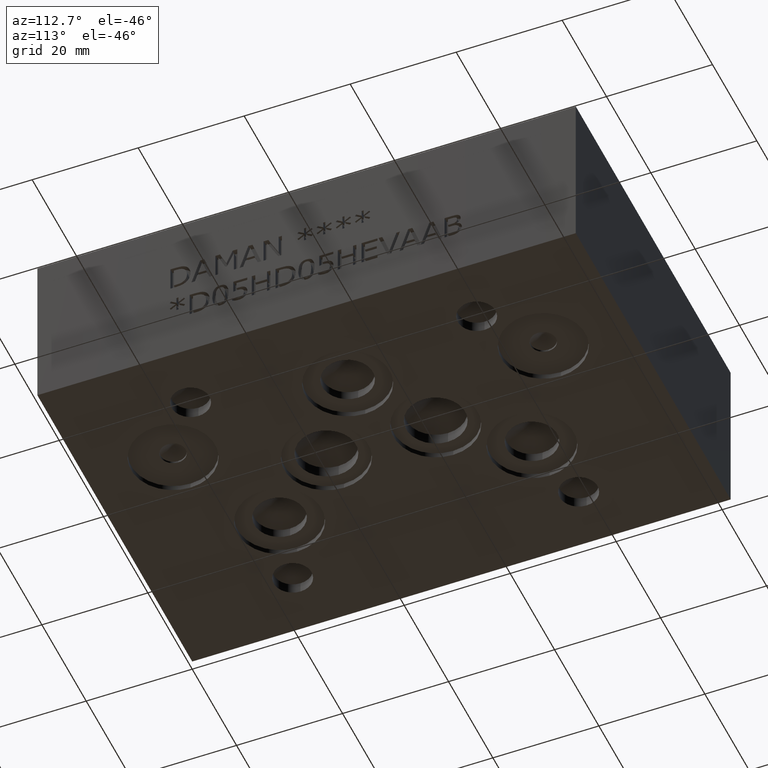
[diagram: clean part render]
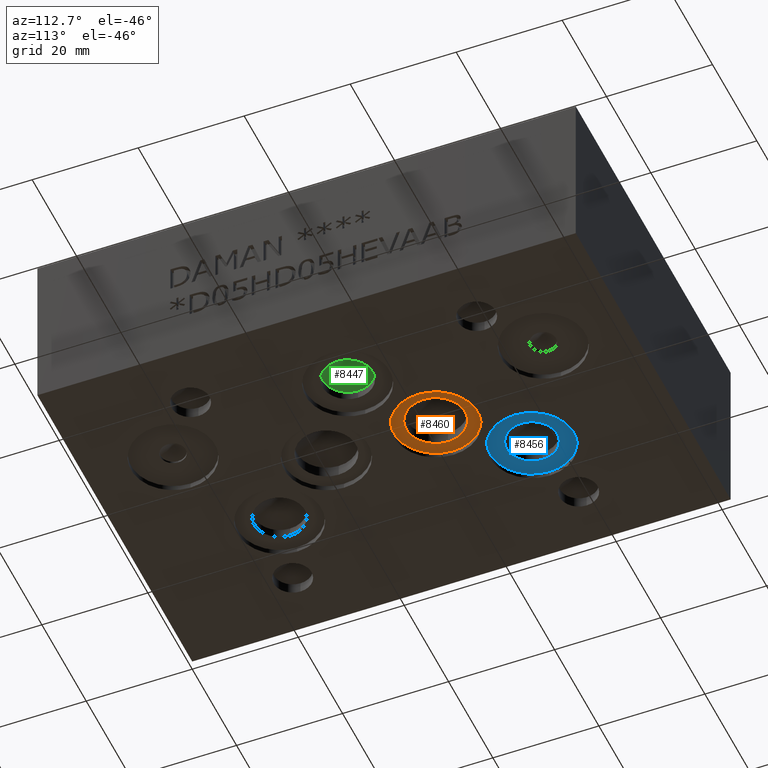
[diagram: same view with three faces highlighted in distinct colors, each labeled with its STEP entity id]
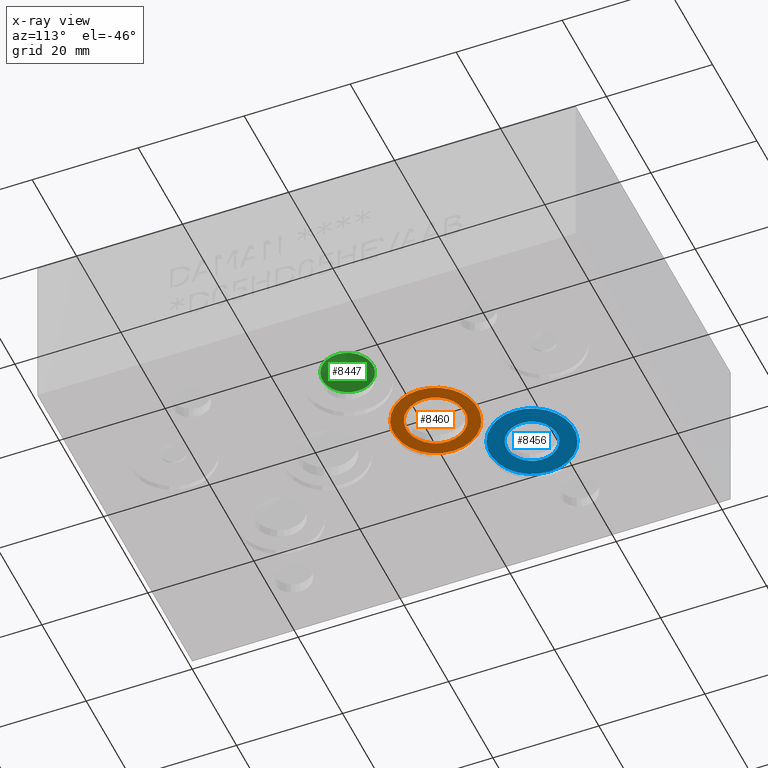
[diagram: x-ray of the same camera — body ghosted, the three highlighted faces saturated]
A machine part, auxiliary view with three faces highlighted in distinct colors.
The next image is the same camera in x-ray (body ghosted, the three faces saturated) — at least one of them is partly hidden behind the body in this view.
Their STEP definitions:

[orange] entity #8460 — the highlighted planar face has unit normal (0, 0, -1).
#48=CIRCLE('',#8798,5.5626);
#82=CIRCLE('',#8851,7.9375);
#83=CIRCLE('',#8852,7.9375);
#211=FACE_BOUND('',#1349,.T.);
#885=FACE_OUTER_BOUND('',#1348,.T.);
#1348=EDGE_LOOP('',(#7198,#7199));
#1349=EDGE_LOOP('',(#7200));
#3831=VERTEX_POINT('',#13911);
#3870=VERTEX_POINT('',#14018);
#3871=VERTEX_POINT('',#14020);
#4958=EDGE_CURVE('',#3831,#3831,#48,.T.);
#5008=EDGE_CURVE('',#3871,#3870,#82,.T.);
#5009=EDGE_CURVE('',#3870,#3871,#83,.T.);
#7198=ORIENTED_EDGE('',*,*,#5008,.T.);
#7199=ORIENTED_EDGE('',*,*,#5009,.T.);
#7200=ORIENTED_EDGE('',*,*,#4958,.T.);
#7714=PLANE('',#8853);
#8460=ADVANCED_FACE('',(#885,#211),#7714,.T.);
#8798=AXIS2_PLACEMENT_3D('',#13912,#10348,#10349);
#8851=AXIS2_PLACEMENT_3D('',#14021,#10470,#10471);
#8852=AXIS2_PLACEMENT_3D('',#14022,#10472,#10473);
#8853=AXIS2_PLACEMENT_3D('',#14023,#10474,#10475);
#10348=DIRECTION('center_axis',(0.,0.,1.));
#10349=DIRECTION('ref_axis',(1.,0.,0.));
#10470=DIRECTION('center_axis',(0.,0.,-1.));
#10471=DIRECTION('ref_axis',(1.,0.,0.));
#10472=DIRECTION('center_axis',(0.,0.,-1.));
#10473=DIRECTION('ref_axis',(1.,0.,0.));
#10474=DIRECTION('center_axis',(0.,0.,-1.));
#10475=DIRECTION('ref_axis',(1.,0.,0.));
#13911=CARTESIAN_POINT('',(30.9626,61.2267,1.016));
#13912=CARTESIAN_POINT('Origin',(36.5252,61.2267,1.016));
#14018=CARTESIAN_POINT('',(28.5877,61.2267,1.016));
#14020=CARTESIAN_POINT('',(44.4627,61.2267,1.016));
#14021=CARTESIAN_POINT('Origin',(36.5252,61.2267,1.016));
#14022=CARTESIAN_POINT('Origin',(36.5252,61.2267,1.016));
#14023=CARTESIAN_POINT('Origin',(36.5252,61.2267,1.016));

[blue] entity #8456 — the highlighted planar face has unit normal (0, 0, -1).
#57=CIRCLE('',#8813,4.7625);
#74=CIRCLE('',#8839,7.9375);
#75=CIRCLE('',#8840,7.9375);
#209=FACE_BOUND('',#1343,.T.);
#881=FACE_OUTER_BOUND('',#1342,.T.);
#1342=EDGE_LOOP('',(#7180,#7181));
#1343=EDGE_LOOP('',(#7182));
#3843=VERTEX_POINT('',#13944);
#3862=VERTEX_POINT('',#13996);
#3863=VERTEX_POINT('',#13998);
#4973=EDGE_CURVE('',#3843,#3843,#57,.T.);
#4998=EDGE_CURVE('',#3863,#3862,#74,.T.);
#4999=EDGE_CURVE('',#3862,#3863,#75,.T.);
#7180=ORIENTED_EDGE('',*,*,#4998,.T.);
#7181=ORIENTED_EDGE('',*,*,#4999,.T.);
#7182=ORIENTED_EDGE('',*,*,#4973,.T.);
#7712=PLANE('',#8841);
#8456=ADVANCED_FACE('',(#881,#209),#7712,.T.);
#8813=AXIS2_PLACEMENT_3D('',#13945,#10384,#10385);
#8839=AXIS2_PLACEMENT_3D('',#13999,#10444,#10445);
#8840=AXIS2_PLACEMENT_3D('',#14000,#10446,#10447);
#8841=AXIS2_PLACEMENT_3D('',#14001,#10448,#10449);
#10384=DIRECTION('center_axis',(0.,0.,1.));
#10385=DIRECTION('ref_axis',(1.,0.,0.));
#10444=DIRECTION('center_axis',(0.,0.,-1.));
#10445=DIRECTION('ref_axis',(1.,0.,0.));
#10446=DIRECTION('center_axis',(0.,0.,-1.));
#10447=DIRECTION('ref_axis',(1.,0.,0.));
#10448=DIRECTION('center_axis',(0.,0.,-1.));
#10449=DIRECTION('ref_axis',(1.,0.,0.));
#13944=CARTESIAN_POINT('',(20.65782,74.7395,1.016));
#13945=CARTESIAN_POINT('Origin',(25.42032,74.7395,1.016));
#13996=CARTESIAN_POINT('',(17.4879,74.7395,1.016));
#13998=CARTESIAN_POINT('',(33.3629,74.7395,1.016));
#13999=CARTESIAN_POINT('Origin',(25.4254,74.7395,1.016));
#14000=CARTESIAN_POINT('Origin',(25.4254,74.7395,1.016));
#14001=CARTESIAN_POINT('Origin',(25.4254,74.7395,1.016));

[green] entity #8447 — the highlighted conical surface has half-angle 60 deg.
#58=CIRCLE('',#8815,4.7625);
#59=CIRCLE('',#8816,4.7625);
#157=CONICAL_SURFACE('',#8814,2.38125,1.0471975511966);
#872=FACE_OUTER_BOUND('',#1331,.T.);
#1331=EDGE_LOOP('',(#7138,#7139,#7140,#7141));
#2239=LINE('',#13952,#3113);
#3113=VECTOR('',#10391,2.38125);
#3844=VERTEX_POINT('',#13948);
#3845=VERTEX_POINT('',#13949);
#3846=VERTEX_POINT('',#13951);
#4975=EDGE_CURVE('',#3844,#3845,#58,.T.);
#4976=EDGE_CURVE('',#3845,#3846,#2239,.T.);
#4977=EDGE_CURVE('',#3845,#3844,#59,.T.);
#7138=ORIENTED_EDGE('',*,*,#4975,.T.);
#7139=ORIENTED_EDGE('',*,*,#4976,.T.);
#7140=ORIENTED_EDGE('',*,*,#4976,.F.);
#7141=ORIENTED_EDGE('',*,*,#4977,.T.);
#8447=ADVANCED_FACE('',(#872),#157,.F.);
#8814=AXIS2_PLACEMENT_3D('',#13947,#10387,#10388);
#8815=AXIS2_PLACEMENT_3D('',#13950,#10389,#10390);
#8816=AXIS2_PLACEMENT_3D('',#13953,#10392,#10393);
#10387=DIRECTION('center_axis',(0.,0.,-1.));
#10388=DIRECTION('ref_axis',(1.,0.,0.));
#10389=DIRECTION('center_axis',(0.,0.,-1.));
#10390=DIRECTION('ref_axis',(1.,0.,0.));
#10391=DIRECTION('',(0.866025403784439,-1.06057523872491E-16,0.5));
#10392=DIRECTION('center_axis',(0.,0.,-1.));
#10393=DIRECTION('ref_axis',(1.,0.,0.));
#13947=CARTESIAN_POINT('Origin',(51.6128,50.9143,4.1244453285078));
#13948=CARTESIAN_POINT('',(56.3753,50.9143,2.74963));
#13949=CARTESIAN_POINT('',(46.8503,50.9143,2.74963));
#13950=CARTESIAN_POINT('Origin',(51.6128,50.9143,2.74963));
#13951=CARTESIAN_POINT('',(51.6128,50.9143,5.49926065701559));
#13952=CARTESIAN_POINT('',(49.23155,50.9143,4.1244453285078));
#13953=CARTESIAN_POINT('Origin',(51.6128,50.9143,2.74963));